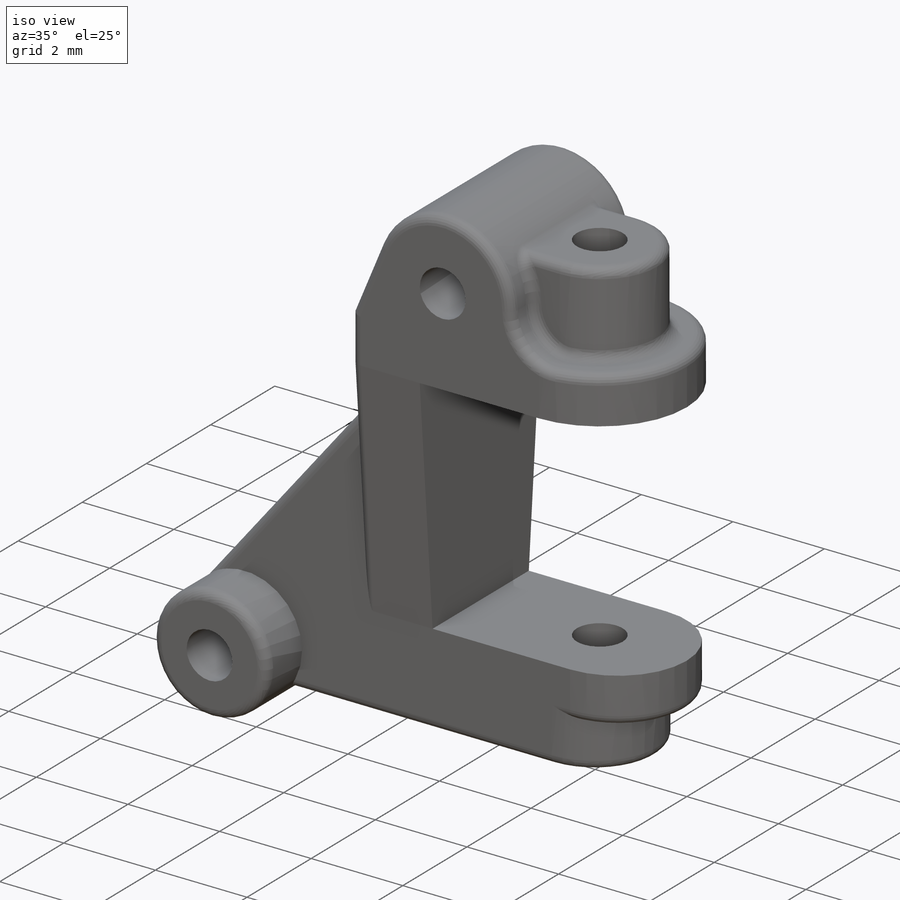
[diagram: iso view]
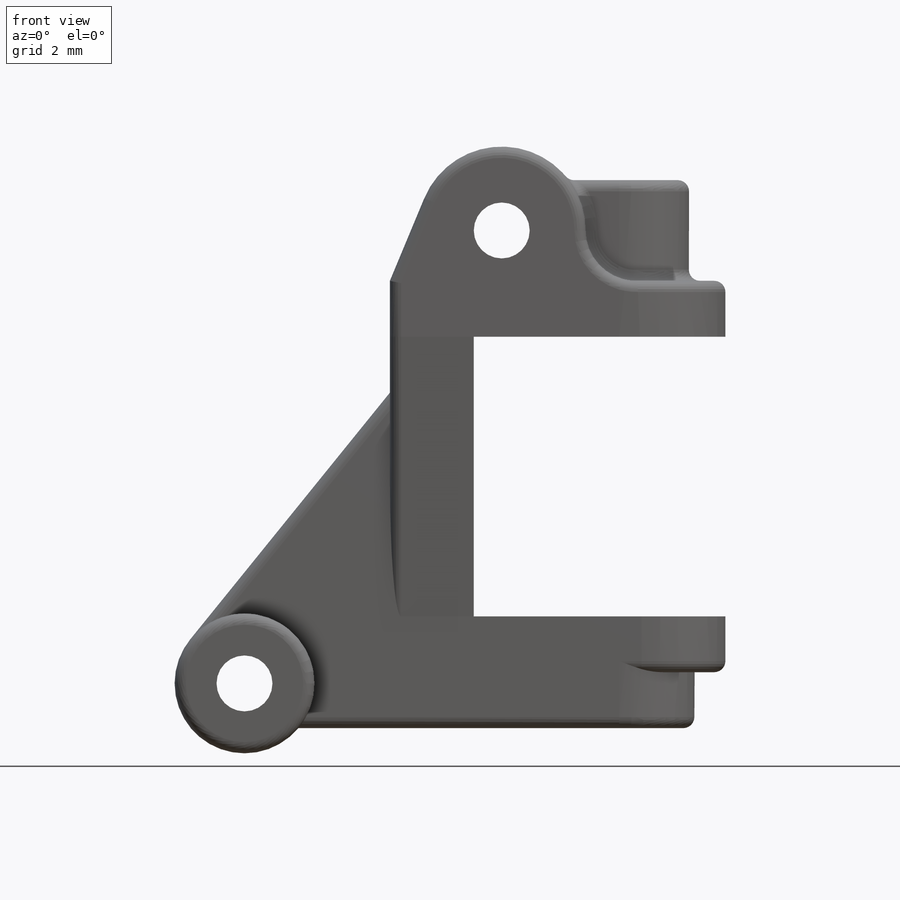
[diagram: front view]
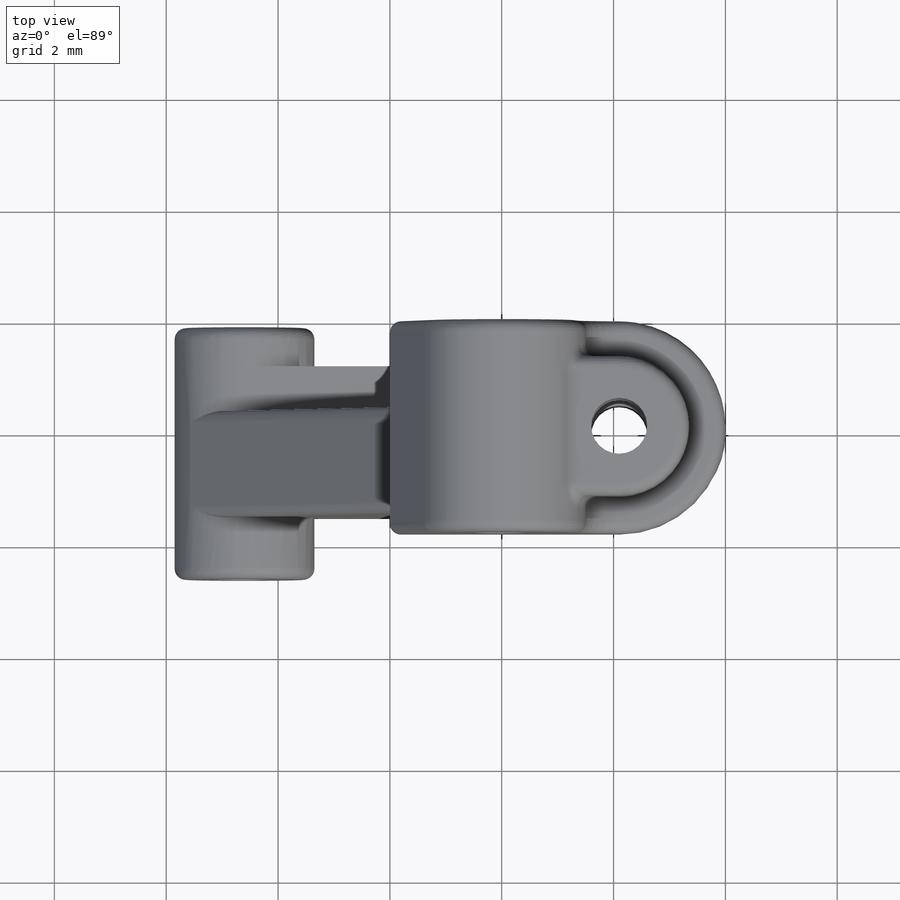
[diagram: top view]
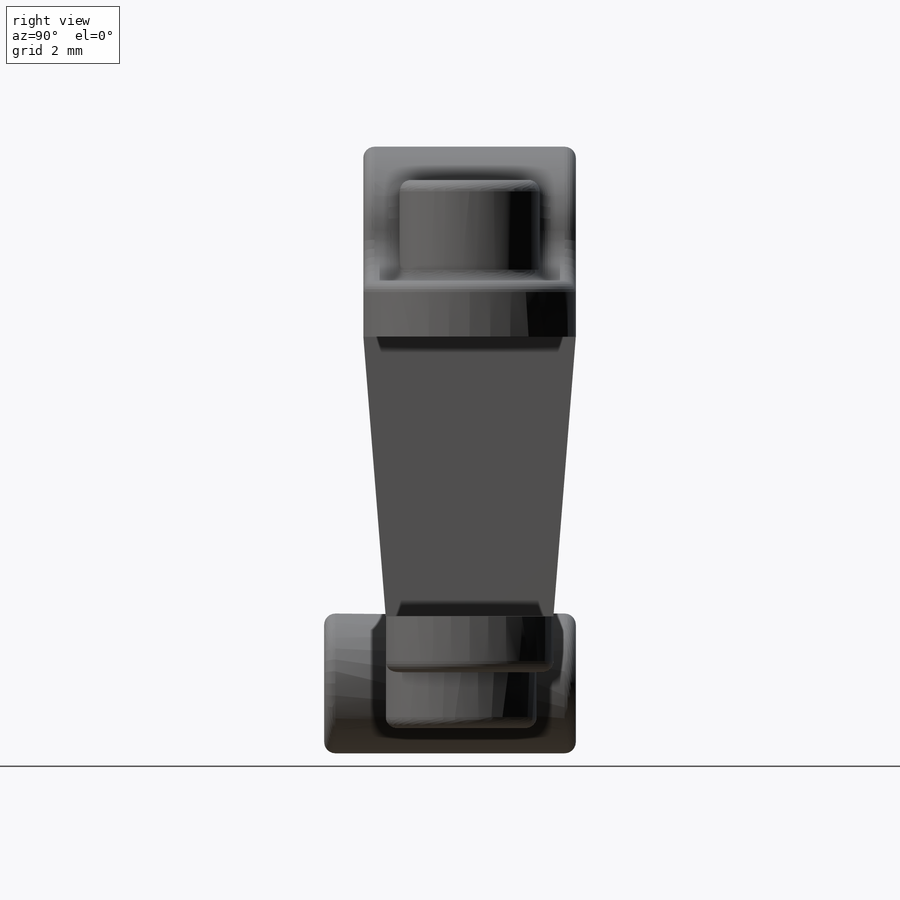
[diagram: right view]
SOLIDWORKS PART (.sldprt)
format: sldprt  version: not decoded by parser v0  size: 455,168 bytes
history: native  units: mm
features: sketch x12, extrude x8, cut_extrude x4, fillet x2, material x1 (+11 scaffold rows collapsed)
feature tree (38):
  scaffold x11  (default folders/planes/origin — collapsed)
  material  "Material <not specified>"
  sketch  "Sketch1"  dims[c1.D1=3.0mm c1.D2=4.0mm c1.D3=5.5mm c1.D4=1.0mm c1.D5=1.0mm c2.D1=3.8mm c2.D2=3.0mm c2.D3=5.0mm]
  extrude  "Boss-Extrude1"  Depth=6mm
  sketch  "Sketch6"  dims[c1.D1=1.0mm c1.D4=1.5mm c1.D2=4.0mm c1.D3=0.9mm c2.D2=2.0mm]
  extrude  "Boss-Extrude5"  [1 undecoded]
  sketch  "Sketch2"  dims[D1=1.5mm]
  cut_extrude  "Cut-Extrude1"  [1 undecoded]
  sketch  "Sketch3"  dims[D1=1.0mm D2=~1.154779mm]
  cut_extrude  "Cut-Extrude2"  [1 undecoded]
  sketch  "Sketch4"  dims[D1=2.5mm D2=1.0mm]
  extrude  "Boss-Extrude2"  Depth=1.8mm
  fillet  "Fillet1"  Radius=0.2mm
  sketch  "Sketch7"
  cut_extrude  "Cut-Extrude4"  [1 undecoded]
  sketch  "Sketch8"
  cut_extrude  "Cut-Extrude5"  [1 undecoded]
  sketch  "Sketch9"  dims[c1.D1=2.5mm c1.D6=1.0mm c1.D2=2.0mm c1.D3=2.6mm c1.D4=1.0mm c1.D5=0.8mm c2.D2=1.0mm]
  extrude  "Boss-Extrude6"  Depth=1.9mm
  sketch  "Sketch10"
  extrude  "Boss-Extrude7"  Depth=0.8mm
  sketch  "Sketch11"
  extrude  "Boss-Extrude8"  [1 undecoded]
  sketch  "Sketch12"
  extrude  "Boss-Extrude9"  Depth=0.7mm
  sketch  "Sketch13"
  extrude  "Boss-Extrude10"  Depth=1.1mm
  fillet  "Fillet3"  Radius=0.2mm
decode coverage: 14 of 26 modeling features carry decoded parameters
note: ~ marks probable driven/reference dimensions
note: 6 parameter values undecoded
summary: no parameter record found for 6 features
note: suppression state not decoded; provenance and decode notes live in map.json
